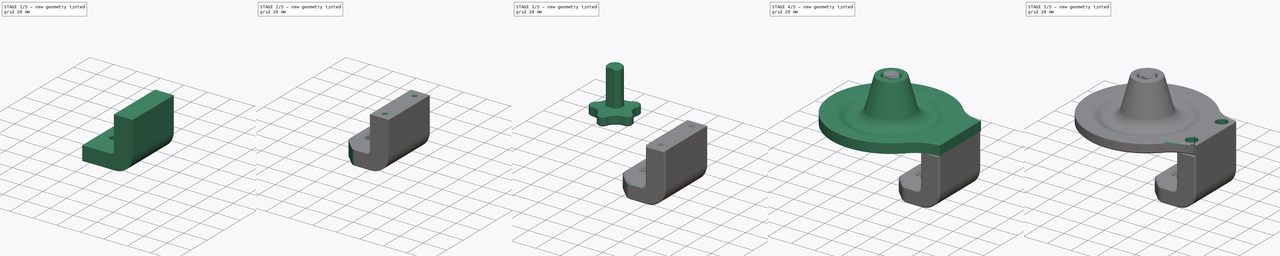
[diagram: build sequence overview — one tinted view per stage of 5, left to right]
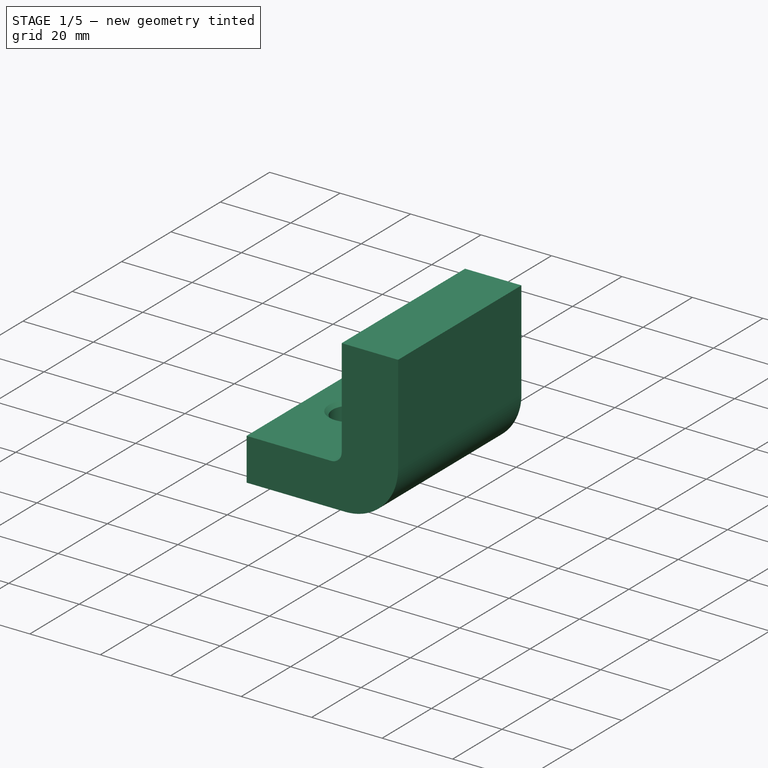
[diagram: stage 1 of 5 — iso view after this stage's code; geometry added in this stage tinted green]
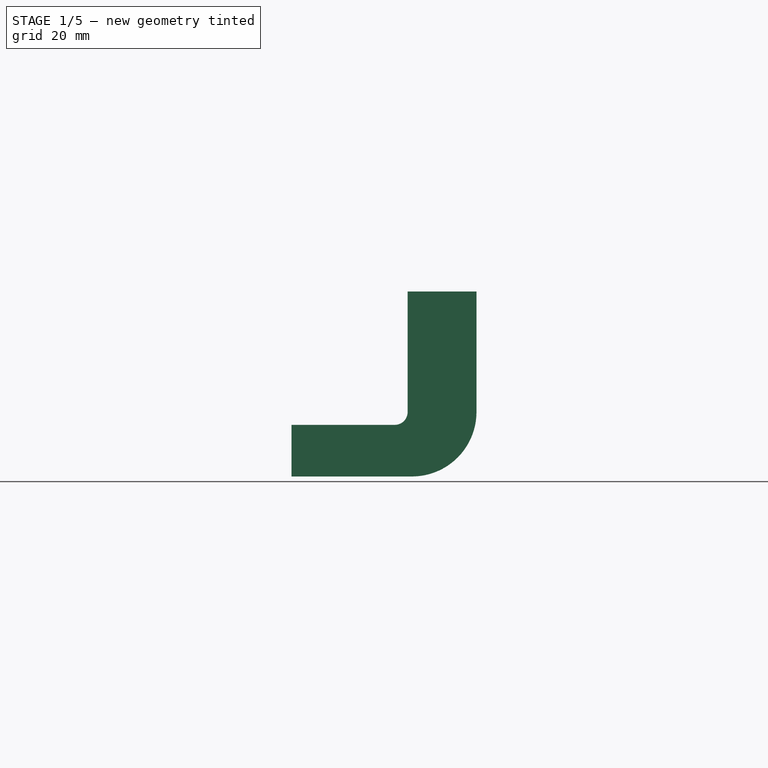
[diagram: stage 1 of 5 — front view after this stage's code; geometry added in this stage tinted green]
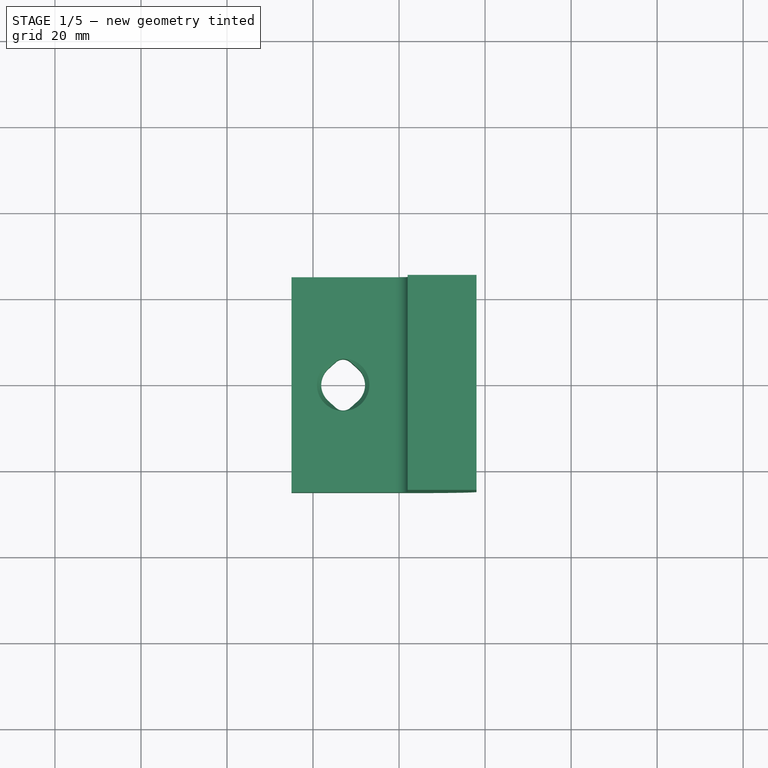
[diagram: stage 1 of 5 — top view after this stage's code; geometry added in this stage tinted green]
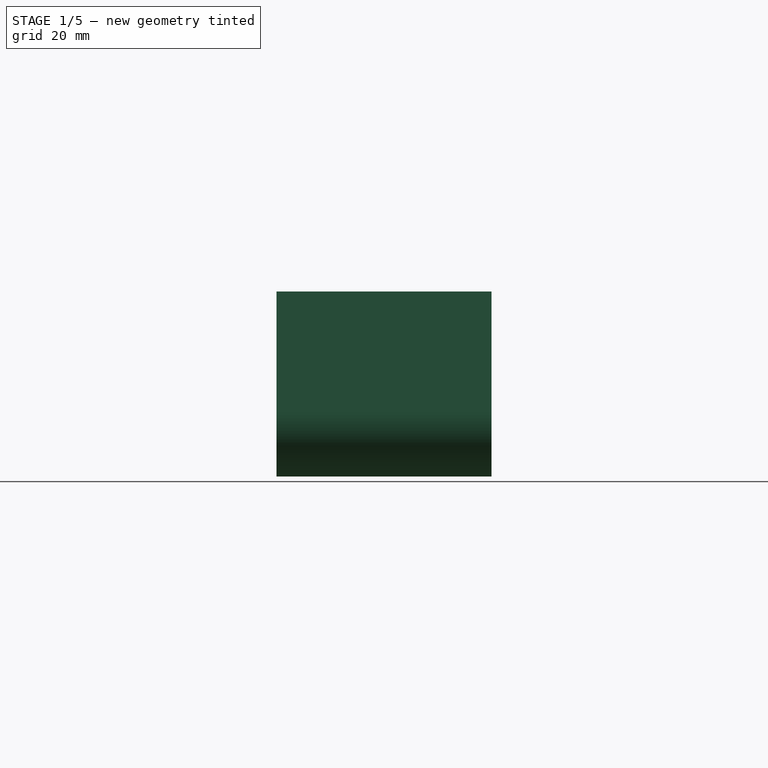
[diagram: stage 1 of 5 — right view after this stage's code; geometry added in this stage tinted green]
FCSTD DOCUMENT  (FreeCAD 0.21R33771 (Git))
Label: _LampFoot
License: Creative Commons Attribution 4.0
objects: Sketcher::SketchObject×12, PartDesign::Chamfer×6, PartDesign::Pocket×5, PartDesign::Hole×3, PartDesign::Body×3, PartDesign::Revolution×2, PartDesign::Pad×2, PartDesign::Fillet×2, PartDesign::SubtractiveHelix×1
note: 57 computed .brp shape members not serialized (recipe doc carries the construction recipe); baked Part::Feature solids carry a one-line shape summary decoded from their .brp

FEATURE [Sketcher::SketchObject] Sketch002
  AttachmentOffset = pos=(0,0,8) rot=(0,0,1;0rad)
  FullyConstrained = true
  MapMode = 5
  Placement = pos=(0,0,8) rot=(0,0,1;0rad)
  Support = -> [XY_Plane]
  expr: .AttachmentOffset.Base.z = Sketch.Constraints[20]
  sketch-geometry (2):
    g0: Circle CenterX=50 CenterY=18 CenterZ=0 NormalX=0 NormalY=0 NormalZ=1 AngleXU=0 Radius=2.2
    g1: Circle CenterX=50 CenterY=-18 CenterZ=0 NormalX=0 NormalY=0 NormalZ=1 AngleXU=0 Radius=2.2
  constraints (5):
    c: Symmetric(g1,g0,g-1)
    c: Equal(g0,g1)
    c: Diameter(g0) = 4.4
    c: DistanceY(g1,g-1) = 18
    c: DistanceX(g-1,g0) = 50
FEATURE [Sketcher::SketchObject] Sketch004
  FullyConstrained = true
  MapMode = 5
  Placement = pos=(0,0,0) rot=(1,0,0;1.5708rad)
  Support = -> [XZ_Plane001]
  sketch-geometry (8):
    g0: LineSegment StartX=42 StartY=0 StartZ=0 EndX=42 EndY=-28 EndZ=0
    g1: LineSegment StartX=39 StartY=-31 StartZ=0 EndX=15 EndY=-31 EndZ=0
    g2: LineSegment StartX=15 StartY=-31 StartZ=0 EndX=15 EndY=-43 EndZ=0
    g3: LineSegment StartX=15 StartY=-43 StartZ=0 EndX=43 EndY=-43 EndZ=0
    g4: LineSegment StartX=58 StartY=-28 StartZ=0 EndX=58 EndY=0 EndZ=0
    g5: LineSegment StartX=58 StartY=0 StartZ=0 EndX=42 EndY=0 EndZ=0
    g6: ArcOfCircle CenterX=43 CenterY=-28 CenterZ=0 NormalX=0 NormalY=0 NormalZ=1 AngleXU=0 Radius=15 StartAngle=4.71239 EndAngle=6.28319
    g7: ArcOfCircle CenterX=39 CenterY=-28 CenterZ=0 NormalX=0 NormalY=0 NormalZ=1 AngleXU=0 Radius=3 StartAngle=4.71239 EndAngle=6.28319
  constraints (22):
    c: Vertical(g0)
    c: Horizontal(g1)
    c: Coincident(g1,g2)
    c: Coincident(g2,g3)
    c: Coincident(g4,g5)
    c: Coincident(g5,g0)
    c: Horizontal(g5)
    c: Horizontal(g3)
    c: Vertical(g2)
    c: Vertical(g4)
    c: DistanceX(g5,g5) = 16
    c: PointOnObject(g4,g-1)
    c: DistanceX(g-1,g4) = 58
    c: DistanceY(g2,g2) = 12
    c: Tangent(g6,g4) = -1.5708
    c: Tangent(g6,g3) = -1.5708
    c: Tangent(g0,g7) = 1.5708
    c: Tangent(g1,g7) = 1.5708
    c: DistanceY(g0,g0) = 28
    c: Radius(g7) = 3
    c: Horizontal(g0,g4)
    c: DistanceX(g1,g1) = 24
FEATURE [PartDesign::Pad] Pad001
  Direction = (0,-1,-2e-16)
  Length = 50
  Length2 = 10
  Midplane = true
  Placement = pos=(0,0,0) rot=(1,0,0;1.5708rad)
  Profile = -> Sketch004
  ReferenceAxis = -> Sketch004 [N_Axis]
  Type = 0
FEATURE [Sketcher::SketchObject] Sketch005
  FullyConstrained = true
  MapMode = 5
  Support = -> [XY_Plane001]
  sketch-geometry (1):
    g0: Circle CenterX=27 CenterY=0 CenterZ=0 NormalX=0 NormalY=0 NormalZ=1 AngleXU=0 Radius=5.1
  constraints (3):
    c: PointOnObject(g0,g-1)
    c: Diameter(g0) = 10.2
    c: DistanceX(g-1,g0) = 27
FEATURE [PartDesign::Pocket] Pocket
  BaseFeature = -> Pad001
  Direction = (0,0,-1)
  Length = 5
  Length2 = 5
  Placement = pos=(0,0,0) rot=(1,0,0;1.5708rad)
  Profile = -> Sketch005
  ReferenceAxis = -> Sketch005 [N_Axis]
  Type = 1
FEATURE [PartDesign::Chamfer] Chamfer005
  Angle = 45
  Base = -> Pocket [Edge5,Edge23]
  BaseFeature = -> Pocket
  ChamferType = 0
  FlipDirection = false
  Placement = pos=(0,0,0) rot=(1,0,0;1.5708rad)
  Size = 1
  Size2 = 1
  SupportTransform = false
  UseAllEdges = false
FEATURE [PartDesign::Body] Body  label="Base"
  Group = -> [Sketch,Revolution,Sketch001,Pad,Sketch002,Hole,Chamfer,Chamfer003,Fillet]
  Origin = -> Origin
  Tip = -> Fillet
FEATURE [Sketcher::SketchObject] Sketch007
  ExternalGeometry = -> [Sketch005]
  FullyConstrained = true
  MapMode = 5
  Support = -> [XY_Plane001]
  sketch-geometry (9):
    g0: LineSegment StartX=25.3264 StartY=5.35714 StartZ=0 EndX=23.5858 EndY=3.78857 EndZ=0
    g1: ArcOfCircle CenterX=27 CenterY=0 CenterZ=0 NormalX=0 NormalY=0 NormalZ=1 AngleXU=0 Radius=5.1 StartAngle=2.30426 EndAngle=3.97892
    g2: LineSegment StartX=23.5858 StartY=-3.78857 StartZ=0 EndX=25.3264 EndY=-5.35714 EndZ=0
    g3: LineSegment StartX=28.6736 StartY=-5.35714 StartZ=0 EndX=30.4142 EndY=-3.78857 EndZ=0
    g4: ArcOfCircle CenterX=27 CenterY=0 CenterZ=0 NormalX=0 NormalY=0 NormalZ=1 AngleXU=0 Radius=5.1 StartAngle=5.44586 EndAngle=7.12051
    g5: LineSegment StartX=30.4142 StartY=3.78857 StartZ=0 EndX=28.6736 EndY=5.35714 EndZ=0
    g6: ArcOfCircle CenterX=27 CenterY=3.5 CenterZ=0 NormalX=0 NormalY=0 NormalZ=1 AngleXU=0 Radius=2.5 StartAngle=0.837328 EndAngle=2.30426
    g7: ArcOfCircle CenterX=27 CenterY=-3.5 CenterZ=0 NormalX=0 NormalY=0 NormalZ=1 AngleXU=0 Radius=2.5 StartAngle=3.97892 EndAngle=5.44586
    g8: Circle CenterX=27 CenterY=0 CenterZ=0 NormalX=0 NormalY=0 NormalZ=1 AngleXU=0 Radius=6
  constraints (19):
    c: Tangent(g0,g1) = -1.5708
    c: Tangent(g1,g2) = -1.5708
    c: Tangent(g3,g4) = -1.5708
    c: Tangent(g4,g5) = -1.5708
    c: Equal(g1,g4)
    c: Coincident(g4,g1)
    c: Radius(g4) = 5.1
    c: Coincident(g1,g-3)
    c: Tangent(g0,g6) = -1.5708
    c: Tangent(g5,g6) = -1.5708
    c: Tangent(g2,g7) = -1.5708
    c: Tangent(g3,g7) = -1.5708
    c: Equal(g7,g6)
    c: Symmetric(g6,g7,g-1)
    c: Coincident(g8,g1)
    c: Tangent(g6,g8)
    c: Diameter(g8) = 12
    c: Vertical(g6,g1)
    c: Radius(g6) = 2.5
FEATURE [PartDesign::Pocket] Pocket001
  BaseFeature = -> Chamfer005
  Direction = (0,0,-1)
  Length = 5
  Length2 = 5
  Placement = pos=(0,0,0) rot=(1,0,0;1.5708rad)
  Profile = -> Sketch007
  ReferenceAxis = -> Sketch007 [N_Axis]
  Type = 1
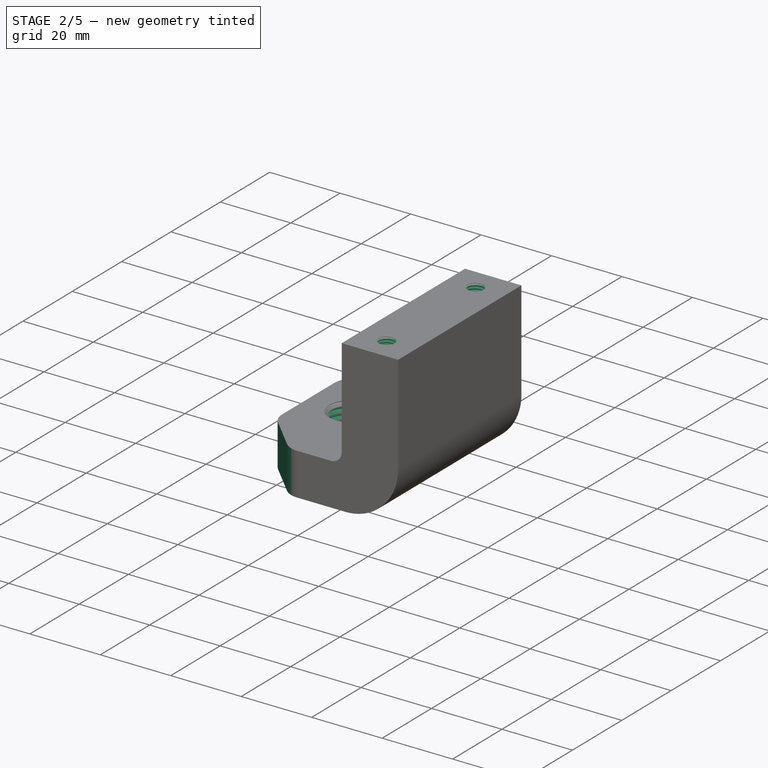
[diagram: stage 2 of 5 — iso view after this stage's code; geometry added in this stage tinted green]
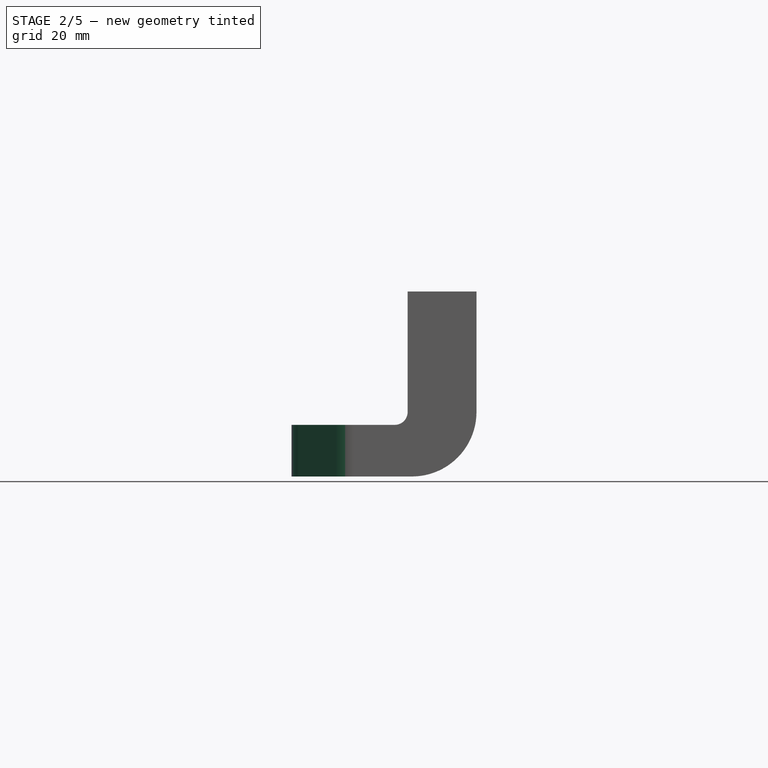
[diagram: stage 2 of 5 — front view after this stage's code; geometry added in this stage tinted green]
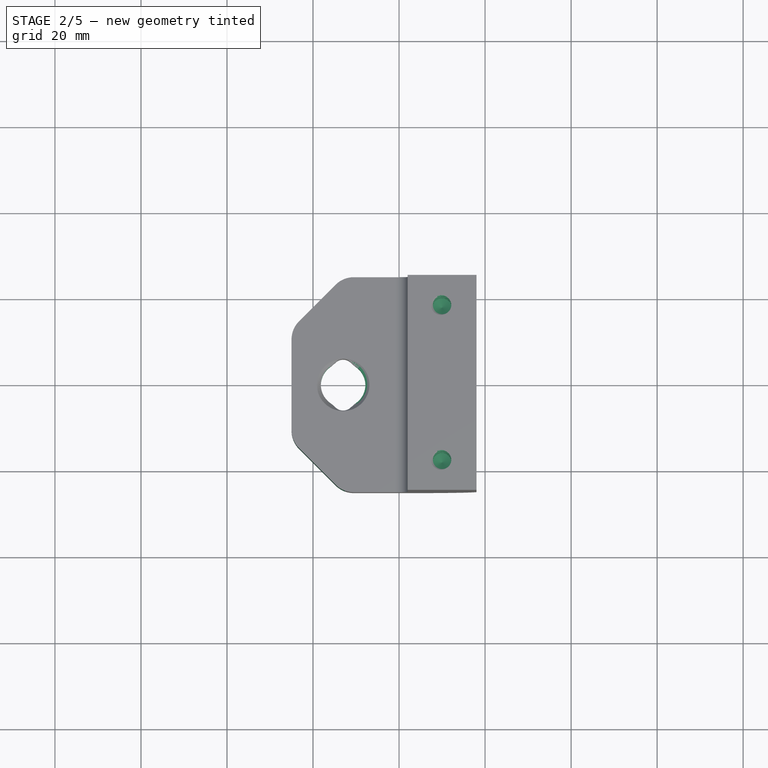
[diagram: stage 2 of 5 — top view after this stage's code; geometry added in this stage tinted green]
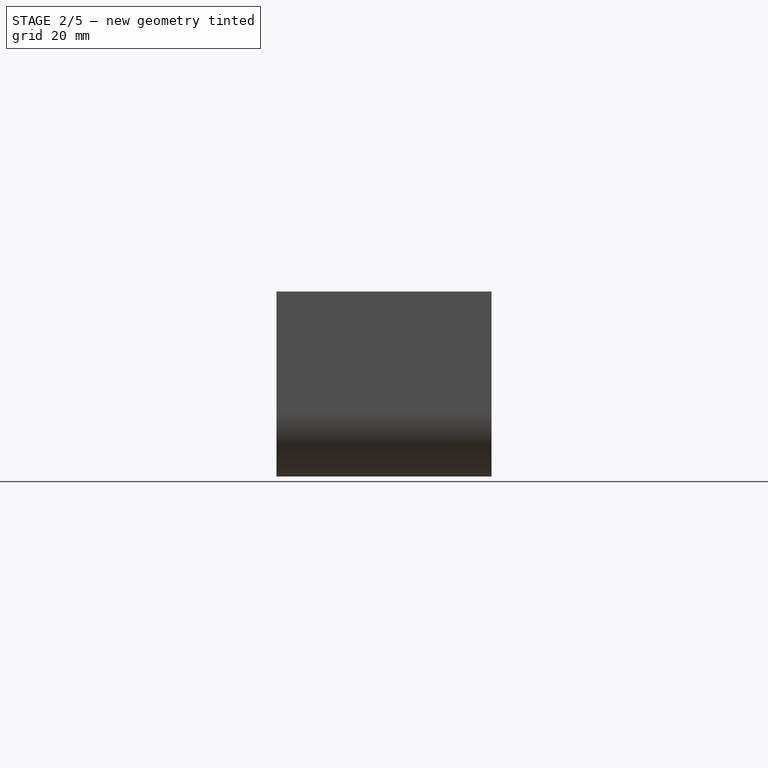
[diagram: stage 2 of 5 — right view after this stage's code; geometry added in this stage tinted green]
FEATURE [PartDesign::Hole] Hole001
  BaseFeature = -> Pocket001
  CustomThreadClearance = 0.15
  Depth = 159.029
  DepthType = 1
  Diameter = 10.35
  DrillForDepth = false
  DrillPoint = 1
  DrillPointAngle = 118
  HoleCutCountersinkAngle = 90
  HoleCutCustomValues = false
  HoleCutDepth = 0
  HoleCutDiameter = 6.1
  HoleCutType = 0
  ModelThread = true
  Placement = pos=(0,0,0) rot=(1,0,0;1.5708rad)
  Profile = -> Pocket001 [Edge1]
  Tapered = false
  TaperedAngle = 90
  ThreadClass = 0
  ThreadDepth = 159.029
  ThreadDepthType = 0
  ThreadDirection = 0
  ThreadFit = 0
  ThreadSize = 20
  ThreadType = 1
  Threaded = true
  UseCustomThreadClearance = true
FEATURE [Sketcher::SketchObject] Sketch006
  FullyConstrained = true
  MapMode = 5
  sketch-geometry (2):
    g0: Circle CenterX=50 CenterY=18 CenterZ=0 NormalX=0 NormalY=0 NormalZ=1 AngleXU=0 Radius=2.1
    g1: Circle CenterX=50 CenterY=-18 CenterZ=0 NormalX=0 NormalY=0 NormalZ=1 AngleXU=0 Radius=2.1
  constraints (5):
    c: Symmetric(g0,g1,g-1)
    c: DistanceX(g-1,g0) = 50
    c: DistanceY(g1,g0) = 36
    c: Equal(g0,g1)
    c: Diameter(g1) = 4.2
FEATURE [PartDesign::Hole] Hole002
  BaseFeature = -> Hole001
  CustomThreadClearance = 0.1
  Depth = 34
  DepthType = 0
  Diameter = 4.3
  DrillForDepth = false
  DrillPoint = 1
  DrillPointAngle = 118
  HoleCutCountersinkAngle = 90
  HoleCutCustomValues = false
  HoleCutDepth = 0
  HoleCutDiameter = 6.1
  HoleCutType = 0
  ModelThread = true
  Placement = pos=(0,0,0) rot=(1,0,0;1.5708rad)
  Profile = -> Sketch006
  Tapered = false
  TaperedAngle = 90
  ThreadClass = 0
  ThreadDepth = 34
  ThreadDepthType = 0
  ThreadDirection = 0
  ThreadFit = 0
  ThreadSize = 13
  ThreadType = 1
  Threaded = true
  UseCustomThreadClearance = true
FEATURE [PartDesign::Body] Body002  label="Srcrew"
  Group = -> [Sketch008,Revolution001,Sketch009,Pocket002,Sketch010,Pocket003,Chamfer006,Sketch011,Sketch012,SubtractiveHelix,Pocket004]
  Origin = -> Origin002
  Placement = pos=(27,0,-64) rot=(0,0,1;0rad)
  Tip = -> Pocket004
FEATURE [PartDesign::Chamfer] Chamfer007
  Angle = 45
  Base = -> Hole002 [Edge28,Edge22]
  BaseFeature = -> Hole002
  ChamferType = 0
  FlipDirection = false
  Placement = pos=(0,0,0) rot=(1,0,0;1.5708rad)
  Size = 12
  Size2 = 1
  SupportTransform = false
  UseAllEdges = false
FEATURE [PartDesign::Fillet] Fillet001
  Base = -> Chamfer007 [Edge21,Edge19,Edge15,Edge8]
  BaseFeature = -> Chamfer007
  Placement = pos=(0,0,0) rot=(1,0,0;1.5708rad)
  Radius = 6
  SupportTransform = false
  UseAllEdges = false
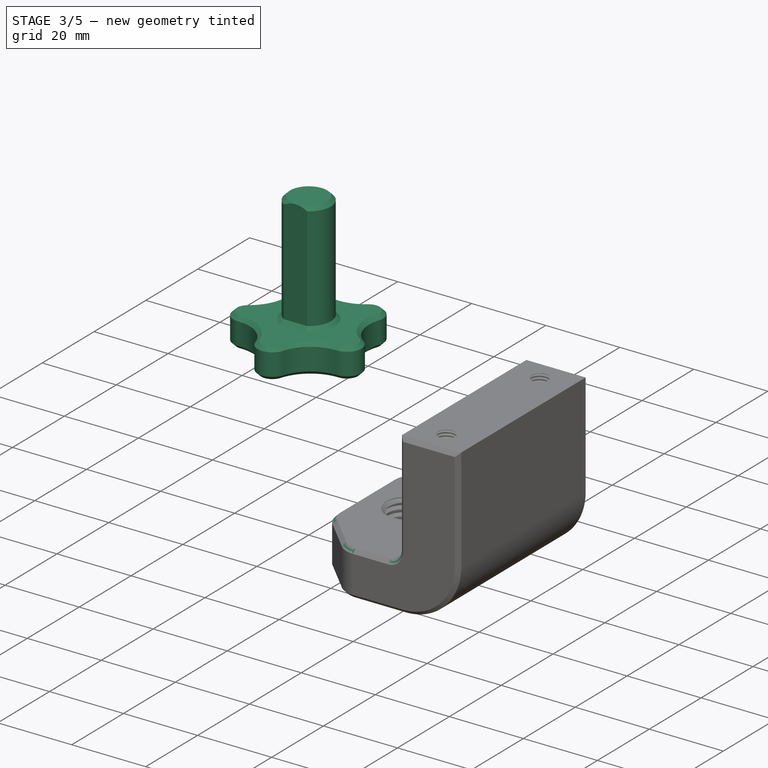
[diagram: stage 3 of 5 — iso view after this stage's code; geometry added in this stage tinted green]
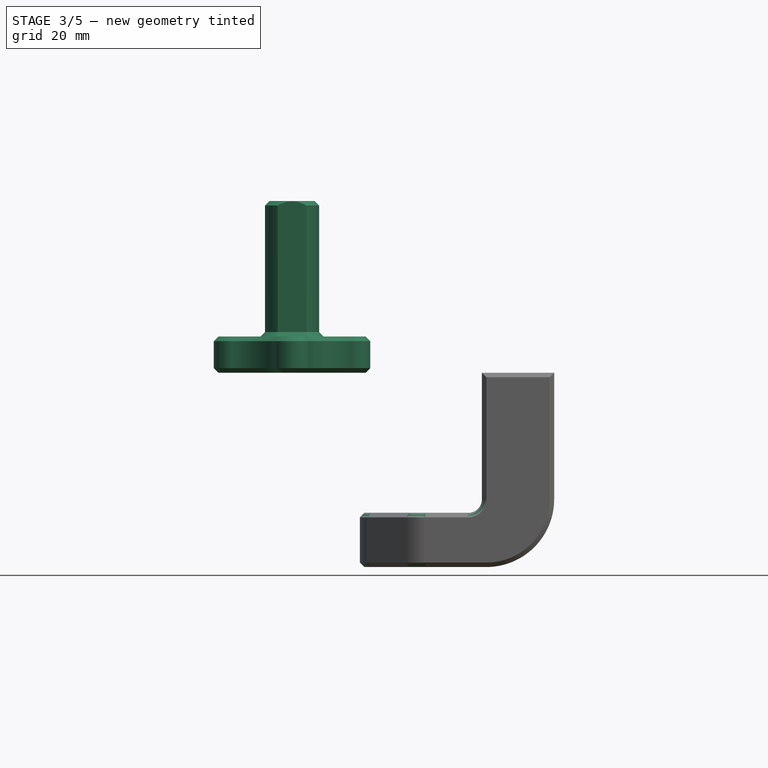
[diagram: stage 3 of 5 — front view after this stage's code; geometry added in this stage tinted green]
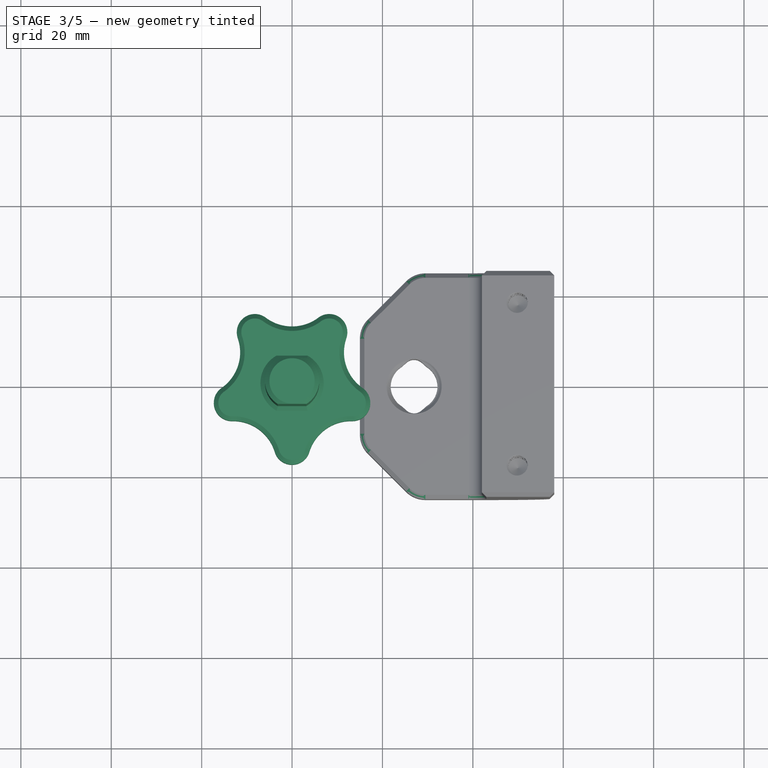
[diagram: stage 3 of 5 — top view after this stage's code; geometry added in this stage tinted green]
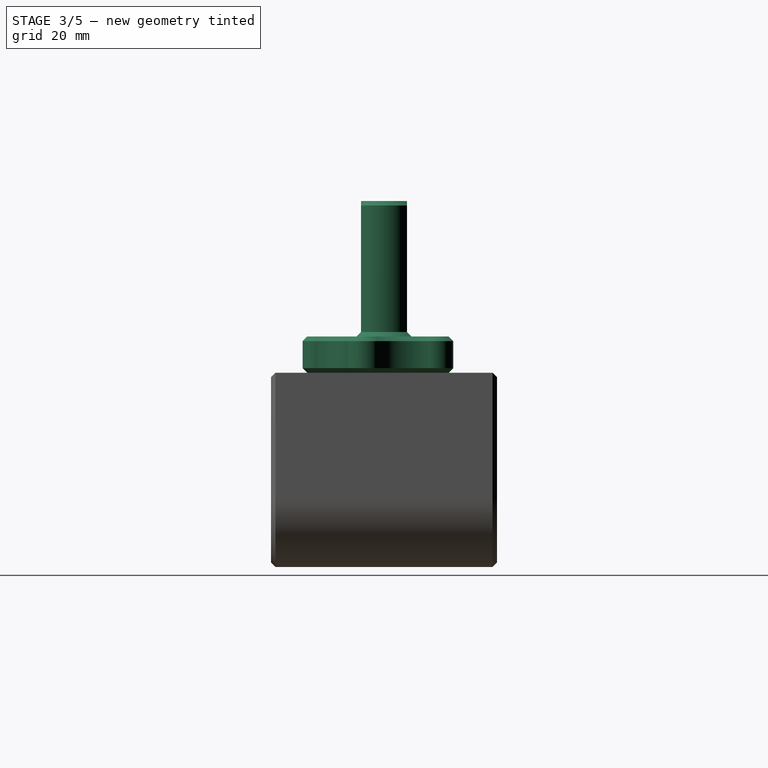
[diagram: stage 3 of 5 — right view after this stage's code; geometry added in this stage tinted green]
FEATURE [Sketcher::SketchObject] Sketch008
  FullyConstrained = true
  MapMode = 5
  Placement = pos=(0,0,0) rot=(1,0,0;1.5708rad)
  Support = -> [XZ_Plane002]
  sketch-geometry (7):
    g0: LineSegment StartX=0 StartY=0 StartZ=0 EndX=18 EndY=0 EndZ=0
    g1: LineSegment StartX=18 StartY=0 StartZ=0 EndX=18 EndY=8 EndZ=0
    g2: LineSegment StartX=18 StartY=8 StartZ=0 EndX=6 EndY=8 EndZ=0
    g3: LineSegment StartX=6 StartY=8 StartZ=0 EndX=6 EndY=37 EndZ=0
    g4: LineSegment StartX=6 StartY=37 StartZ=0 EndX=5 EndY=38 EndZ=0
    g5: LineSegment StartX=5 StartY=38 StartZ=0 EndX=0 EndY=38 EndZ=0
    g6: LineSegment StartX=0 StartY=38 StartZ=0 EndX=0 EndY=0 EndZ=0
  constraints (20):
    c: Coincident(g-1,g0)
    c: PointOnObject(g0,g-1)
    c: Coincident(g0,g1)
    c: Vertical(g1)
    c: Coincident(g1,g2)
    c: Horizontal(g2)
    c: Vertical(g3)
    c: Coincident(g3,g4)
    c: Coincident(g4,g5)
    c: Horizontal(g5)
    c: Coincident(g5,g6)
    c: Coincident(g6,g0)
    c: Vertical(g6)
    c: DistanceY(g3,g4) = 1
    c: DistanceY(g1,g4) = 30
    c: DistanceY(g1,g1) = 8
    c: DistanceX(g5,g3) = 6
    c: DistanceX(g0,g0) = 18
    c: Coincident(g3,g2)
    c: Angle(g4,g3) = 2.35619
FEATURE [PartDesign::Revolution] Revolution001
  Angle = 360
  Axis = (0,2e-16,1)
  Base = (0,0,0)
  Placement = pos=(0,0,0) rot=(1,0,0;1.5708rad)
  Profile = -> Sketch008
  ReferenceAxis = -> Sketch008 [V_Axis]
  Reversed = true
FEATURE [Sketcher::SketchObject] Sketch009
  FullyConstrained = true
  MapMode = 5
  Placement = pos=(0,1.8e-15,8) rot=(0,0,1;3.14159rad)
  Support = -> [Revolution001]
  sketch-geometry (5):
    g0: ArcOfCircle CenterX=0 CenterY=0 CenterZ=0 NormalX=0 NormalY=0 NormalZ=1 AngleXU=0 Radius=6 StartAngle=2.12561 EndAngle=4.15758
    g1: LineSegment StartX=-3.1607 StartY=5.1 StartZ=0 EndX=3.1607 EndY=5.1 EndZ=0
    g2: LineSegment StartX=-3.1607 StartY=-5.1 StartZ=0 EndX=3.1607 EndY=-5.1 EndZ=0
    g3: ArcOfCircle CenterX=0 CenterY=0 CenterZ=0 NormalX=0 NormalY=0 NormalZ=1 AngleXU=0 Radius=6 StartAngle=5.2672 EndAngle=7.29917
    g4: Circle CenterX=0 CenterY=0 CenterZ=0 NormalX=0 NormalY=0 NormalZ=1 AngleXU=0 Radius=19
  constraints (14):
    c: Horizontal(g1)
    c: Horizontal(g2)
    c: Symmetric(g2,g1,g0)
    c: Coincident(g0,g-1)
    c: Diameter(g0) = 12
    c: DistanceY(g2,g1) = 10.2
    c: Coincident(g3,g1)
    c: Coincident(g0,g1)
    c: Equal(g0,g3)
    c: PointOnObject(g0,g2)
    c: Coincident(g3,g2)
    c: Coincident(g0,g3)
    c: Coincident(g4,g0)
    c: Diameter(g4) = 38
FEATURE [PartDesign::Pocket] Pocket002
  BaseFeature = -> Revolution001
  Direction = (0,-2e-16,-1)
  Length = 5
  Length2 = 5
  Placement = pos=(0,0,0) rot=(1,0,0;1.5708rad)
  Profile = -> Sketch009
  ReferenceAxis = -> Sketch009 [N_Axis]
  Refine = true
  Reversed = true
  Type = 1
FEATURE [Sketcher::SketchObject] Sketch010
  FullyConstrained = true
  MapMode = 5
  Support = -> [XY_Plane002]
  sketch-geometry (17):
    g0: LineSegment StartX=0 StartY=22.2492 StartZ=0 EndX=-21.1603 EndY=6.87539 EndZ=0
    g1: LineSegment StartX=-21.1603 StartY=6.87539 StartZ=0 EndX=-13.0778 EndY=-18 EndZ=0
    g2: LineSegment StartX=-13.0778 StartY=-18 StartZ=0 EndX=13.0778 EndY=-18 EndZ=0
    g3: LineSegment StartX=13.0778 StartY=-18 StartZ=0 EndX=21.1603 EndY=6.87539 EndZ=0
    g4: LineSegment StartX=21.1603 StartY=6.87539 StartZ=0 EndX=0 EndY=22.2492 EndZ=0
    g5: Circle CenterX=0 CenterY=0 CenterZ=0 NormalX=0 NormalY=0 NormalZ=1 AngleXU=0 Radius=22.2492
    g6: ArcOfCircle CenterX=0 CenterY=22.2492 CenterZ=0 NormalX=0 NormalY=0 NormalZ=1 AngleXU=0 Radius=9.67582 StartAngle=4.06674 EndAngle=5.35804
    g7: ArcOfCircle CenterX=21.1603 CenterY=6.87539 CenterZ=0 NormalX=0 NormalY=0 NormalZ=1 AngleXU=0 Radius=9.67582 StartAngle=2.8101 EndAngle=4.1014
    g8: ArcOfCircle CenterX=13.0778 CenterY=-18 CenterZ=0 NormalX=0 NormalY=0 NormalZ=1 AngleXU=0 Radius=9.67582 StartAngle=1.55346 EndAngle=2.84477
    g9: ArcOfCircle CenterX=-13.0778 CenterY=-18 CenterZ=0 NormalX=0 NormalY=0 NormalZ=1 AngleXU=0 Radius=9.67582 StartAngle=0.296827 EndAngle=1.58813
    g10: ArcOfCircle CenterX=-21.1603 CenterY=6.87539 CenterZ=0 NormalX=0 NormalY=0 NormalZ=1 AngleXU=0 Radius=9.67582 StartAngle=5.32337 EndAngle=6.61468
    g11: ArcOfCircle CenterX=-8.22899 CenterY=11.3262 CenterZ=0 NormalX=0 NormalY=0 NormalZ=1 AngleXU=0 Radius=4 StartAngle=0.925145 EndAngle=3.47308
    g12: ArcOfCircle CenterX=8.22899 CenterY=11.3262 CenterZ=0 NormalX=0 NormalY=0 NormalZ=1 AngleXU=0 Radius=4 StartAngle=5.95169 EndAngle=8.49963
    g13: ArcOfCircle CenterX=13.3148 CenterY=-4.32624 CenterZ=0 NormalX=0 NormalY=0 NormalZ=1 AngleXU=0 Radius=4 StartAngle=4.69506 EndAngle=7.243
    g14: ArcOfCircle CenterX=-2.6e-15 CenterY=-14 CenterZ=0 NormalX=0 NormalY=0 NormalZ=1 AngleXU=0 Radius=4 StartAngle=3.43842 EndAngle=5.98636
    g15: ArcOfCircle CenterX=-13.3148 CenterY=-4.32624 CenterZ=0 NormalX=0 NormalY=0 NormalZ=1 AngleXU=0 Radius=4 StartAngle=2.18178 EndAngle=4.72972
    g16: Circle CenterX=0 CenterY=0 CenterZ=0 NormalX=0 NormalY=0 NormalZ=1 AngleXU=0 Radius=18
  constraints (44):
    c: Coincident(g0,g1)
    c: Coincident(g1,g2)
    c: Coincident(g2,g3)
    c: Coincident(g3,g4)
    c: Coincident(g4,g0)
    c: PointOnObject(g0,g5)
    c: PointOnObject(g1,g5)
    c: PointOnObject(g2,g5)
    c: PointOnObject(g3,g5)
    c: PointOnObject(g4,g5)
    c: Coincident(g5,g-1)
    c: PointOnObject(g4,g-2)
    c: Coincident(g6,g0)
    c: Coincident(g7,g3)
    c: Coincident(g8,g2)
    c: Coincident(g9,g1)
    c: Coincident(g10,g0)
    c: Tangent(g13,g7) = 1.5708
    c: Tangent(g13,g8) = 1.5708
    c: Tangent(g14,g8) = 1.5708
    c: Tangent(g14,g9) = 1.5708
    c: Tangent(g15,g9) = 1.5708
    c: Tangent(g15,g10) = 1.5708
    c: Tangent(g11,g10) = 1.5708
    c: Tangent(g11,g6) = 1.5708
    c: Tangent(g12,g6) = 1.5708
    c: Tangent(g12,g7) = 1.5708
    c: Equal(g13,g12)
    c: Equal(g12,g11)
    c: Equal(g11,g15)
    c: Equal(g15,g14)
    c: Equal(g8,g7)
    c: Equal(g7,g6)
    c: Equal(g6,g10)
    c: Equal(g10,g9)
    c: Tangent(g14,g2)
    c: Equal(g0,g4)
    c: Equal(g4,g3)
    c: Equal(g3,g2)
    c: Equal(g2,g1)
    c: Coincident(g16,g5)
    c: Tangent(g3,g16)
    c: Diameter(g16) = 36
    c: Radius(g13) = 4
FEATURE [PartDesign::Pocket] Pocket003
  BaseFeature = -> Pocket002
  Direction = (0,0,-1)
  Length = 5
  Length2 = 5
  Placement = pos=(0,0,0) rot=(1,0,0;1.5708rad)
  Profile = -> Sketch010
  ReferenceAxis = -> Sketch010 [N_Axis]
  Reversed = true
  Type = 1
FEATURE [PartDesign::Chamfer] Chamfer006
  Angle = 45
  Base = -> Pocket003 [Edge21,Edge3,Edge50,Edge49,Edge47,Edge46]
  BaseFeature = -> Pocket003
  ChamferType = 0
  FlipDirection = false
  Placement = pos=(0,0,0) rot=(1,0,0;1.5708rad)
  Size = 1
  Size2 = 1
  SupportTransform = false
  UseAllEdges = false
FEATURE [PartDesign::Chamfer] Chamfer008
  Angle = 45
  Base = -> Fillet001 [Edge27,Edge29,Edge17,Edge30]
  BaseFeature = -> Fillet001
  ChamferType = 0
  FlipDirection = false
  Placement = pos=(0,0,0) rot=(1,0,0;1.5708rad)
  Size = 1
  Size2 = 1
  SupportTransform = false
  UseAllEdges = false
FEATURE [PartDesign::Body] Body001  label="Anchor"
  Group = -> [Sketch004,Pad001,Sketch005,Pocket,Chamfer005,Sketch007,Pocket001,Hole001,Sketch006,Hole002,Chamfer007,Fillet001,Chamfer008]
  Origin = -> Origin001
  Tip = -> Chamfer008
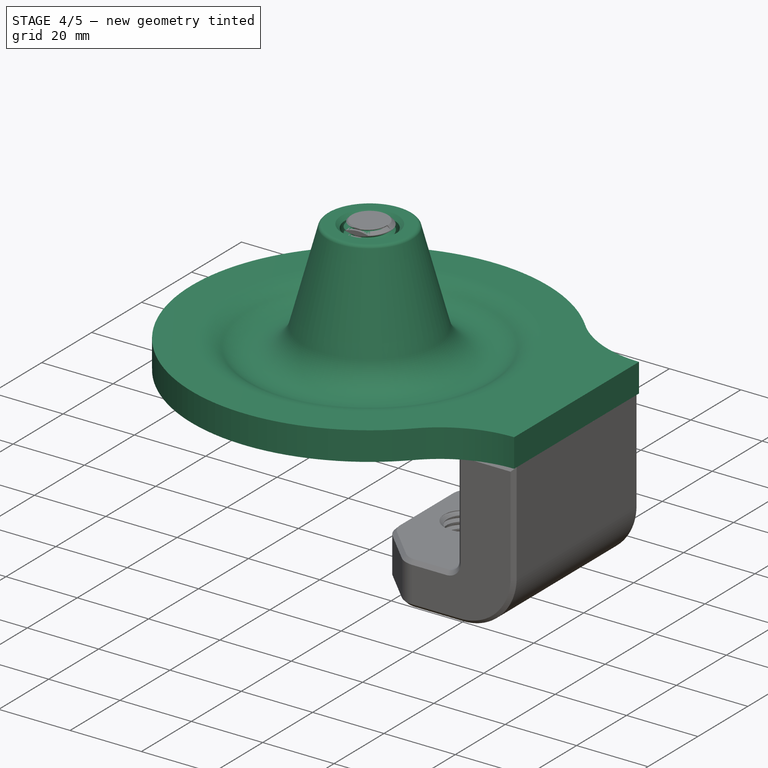
[diagram: stage 4 of 5 — iso view after this stage's code; geometry added in this stage tinted green]
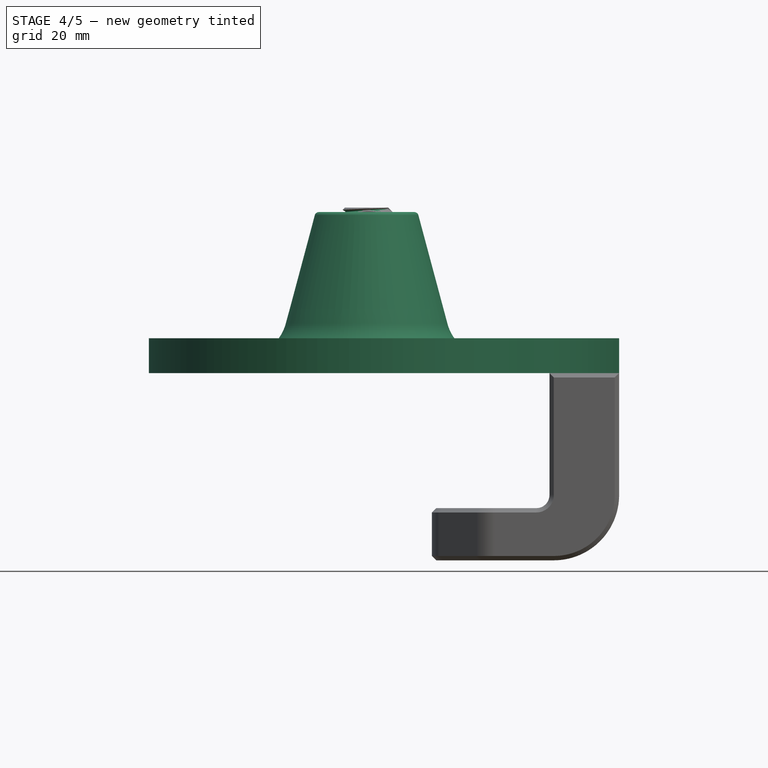
[diagram: stage 4 of 5 — front view after this stage's code; geometry added in this stage tinted green]
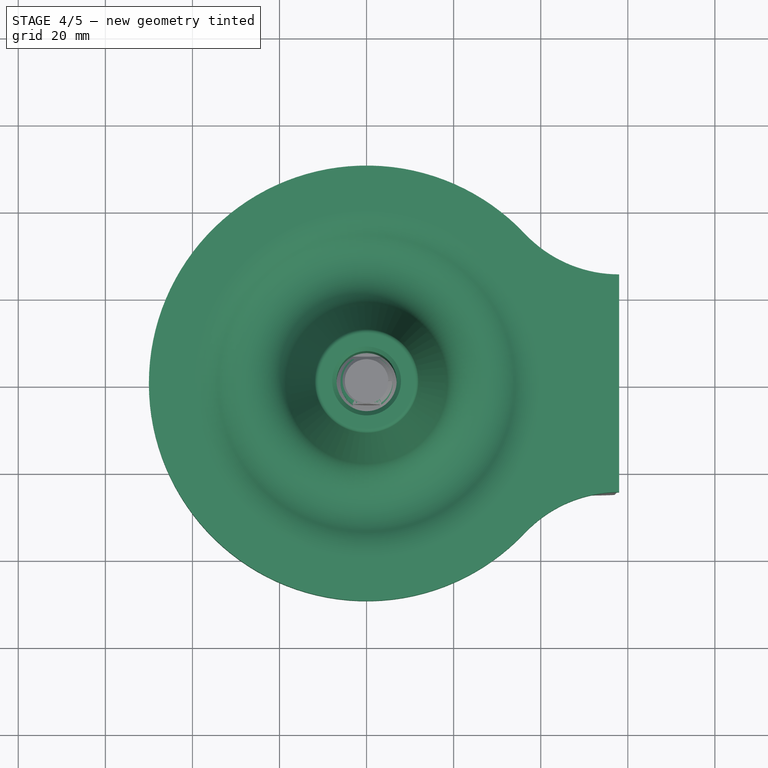
[diagram: stage 4 of 5 — top view after this stage's code; geometry added in this stage tinted green]
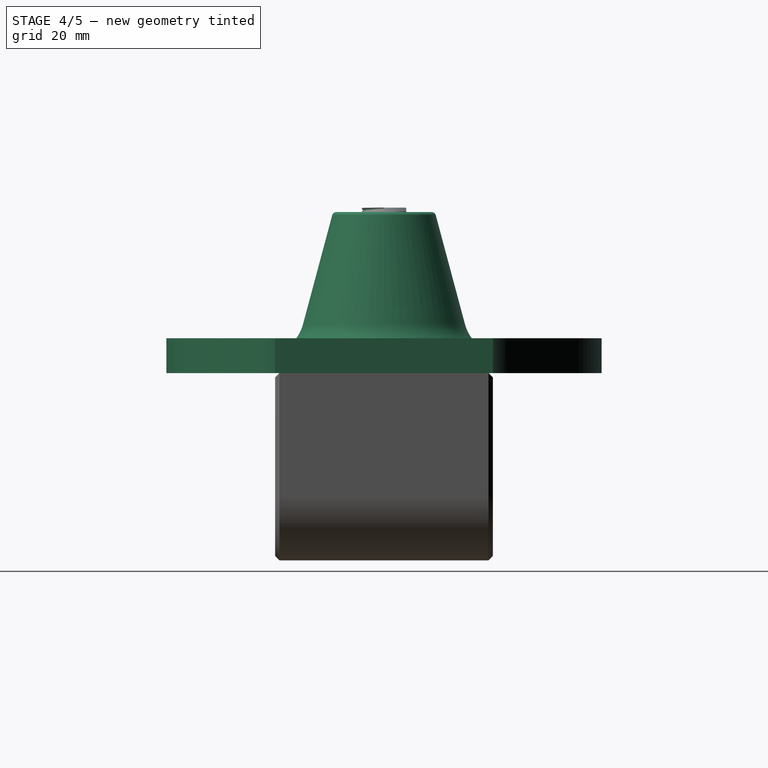
[diagram: stage 4 of 5 — right view after this stage's code; geometry added in this stage tinted green]
FEATURE [Sketcher::SketchObject] Sketch
  FullyConstrained = true
  MapMode = 5
  Placement = pos=(0,0,0) rot=(1,0,0;1.5708rad)
  Support = -> [XZ_Plane]
  sketch-geometry (11):
    g0: LineSegment StartX=6.9 StartY=0 StartZ=0 EndX=6.9 EndY=36 EndZ=0
    g1: LineSegment StartX=6.9 StartY=36 StartZ=0 EndX=7.9 EndY=37 EndZ=0
    g2: LineSegment StartX=7.9 StartY=37 StartZ=0 EndX=10.9341 EndY=37 EndZ=0
    g3: LineSegment StartX=11.9 StartY=36.2588 StartZ=0 EndX=18.5877 EndY=11.2999 EndZ=0
    g4: ArcOfCircle CenterX=28.1011 CenterY=13.849 CenterZ=0 NormalX=0 NormalY=0 NormalZ=1 AngleXU=0 Radius=9.84898 StartAngle=3.40339 EndAngle=5.36098
    g5: ArcOfCircle CenterX=40 CenterY=-1.84898 CenterZ=0 NormalX=0 NormalY=0 NormalZ=1 AngleXU=0 Radius=9.84898 StartAngle=1.5708 EndAngle=2.21939
    g6: LineSegment StartX=40 StartY=8 StartZ=0 EndX=50 EndY=8 EndZ=0
    g7: LineSegment StartX=50 StartY=8 StartZ=0 EndX=50 EndY=0 EndZ=0
    g8: LineSegment StartX=50 StartY=0 StartZ=0 EndX=6.9 EndY=0 EndZ=0
    g9: ArcOfCircle CenterX=10.9341 CenterY=36 CenterZ=0 NormalX=0 NormalY=0 NormalZ=1 AngleXU=0 Radius=1 StartAngle=0.261799 EndAngle=1.5708
    g10: GeomPoint X=28.1011 Y=4 Z=0
  constraints (30):
    c: PointOnObject(g0,g-1)
    c: Vertical(g0)
    c: Coincident(g0,g1)
    c: Coincident(g1,g2)
    c: Horizontal(g2)
    c: Tangent(g3,g4) = -1.5708
    c: Tangent(g4,g5) = 1.5708
    c: Tangent(g5,g6) = 1.5708
    c: Coincident(g8,g0)
    c: Horizontal(g8)
    c: DistanceY(g0,g1) = 37
    c: Vertical(g7)
    c: Horizontal(g6)
    c: DistanceX(g-1,g7) = 50
    c: DistanceX(g-1,g0) = 6.9
    c: Tangent(g2,g9) = 1.5708
    c: Tangent(g3,g9) = 1.5708
    c: Radius(g9) = 1
    c: DistanceX(g0,g3) = 5
    c: Coincident(g7,g6)
    c: DistanceY(g7,g7) = 8
    c: Angle(g0,g3) = 0.261799
    c: DistanceX(g6,g6) = 10
    c: Equal(g5,g4)
    c: PointOnObject(g10,g4)
    c: Vertical(g4,g10)
    c: DistanceY(g10,g6) = 4
    c: Angle(g0,g1) = 2.35619
    c: DistanceY(g0,g1) = 1
    c: Coincident(g7,g8)
FEATURE [PartDesign::Revolution] Revolution
  Angle = 360
  Axis = (0,-2e-16,1)
  Base = (0,0,0)
  Placement = pos=(0,0,0) rot=(1,0,0;1.5708rad)
  Profile = -> Sketch
  ReferenceAxis = -> Sketch [V_Axis]
  Reversed = true
FEATURE [Sketcher::SketchObject] Sketch001
  FullyConstrained = true
  MapMode = 5
  Support = -> [XY_Plane]
  sketch-geometry (4):
    g0: ArcOfCircle CenterX=0 CenterY=0 CenterZ=0 NormalX=0 NormalY=0 NormalZ=1 AngleXU=0 Radius=50 StartAngle=5.52633 EndAngle=7.04004
    g1: ArcOfCircle CenterX=58 CenterY=-54.78 CenterZ=0 NormalX=0 NormalY=0 NormalZ=1 AngleXU=0 Radius=29.78 StartAngle=1.5708 EndAngle=2.38474
    g2: ArcOfCircle CenterX=58 CenterY=54.78 CenterZ=0 NormalX=0 NormalY=0 NormalZ=1 AngleXU=0 Radius=29.78 StartAngle=3.89845 EndAngle=4.71239
    g3: LineSegment StartX=58 StartY=25 StartZ=0 EndX=58 EndY=-25 EndZ=0
  constraints (12):
    c: Coincident(g0,g-1)
    c: Radius(g0) = 50
    c: Equal(g2,g1)
    c: Vertical(g1,g1)
    c: Vertical(g2,g2)
    c: DistanceY(g1,g2) = 50
    c: Vertical(g1,g2)
    c: Tangent(g1,g0) = 1.5708
    c: Tangent(g2,g0) = 1.5708
    c: DistanceX(g0,g1) = 58
    c: Coincident(g3,g2)
    c: Coincident(g3,g1)
FEATURE [PartDesign::Pad] Pad
  BaseFeature = -> Revolution
  Direction = (0,0,1)
  Length = 8
  Length2 = 10
  Placement = pos=(0,0,0) rot=(1,0,0;1.5708rad)
  Profile = -> Sketch001
  ReferenceAxis = -> Sketch001 [N_Axis]
  Refine = true
  Type = 0
FEATURE [Sketcher::SketchObject] Sketch011
  FullyConstrained = true
  MapMode = 5
  Placement = pos=(0,0,0) rot=(1,0,0;1.5708rad)
  Support = -> [XZ_Plane002]
  sketch-geometry (6):
    g0: LineSegment StartX=6.15 StartY=10.74 StartZ=0 EndX=4.64312 EndY=9.87 EndZ=0
    g1: LineSegment StartX=4.64312 StartY=9.87 StartZ=0 EndX=6.15 EndY=9 EndZ=0
    g2: LineSegment StartX=6.15 StartY=9 StartZ=0 EndX=6.15 EndY=10.74 EndZ=0
    g3: LineSegment StartX=6.15 StartY=9 StartZ=0 EndX=4.94312 EndY=9.69679 EndZ=0
    g4: ArcOfCircle CenterX=5.04312 CenterY=9.87 CenterZ=0 NormalX=0 NormalY=0 NormalZ=1 AngleXU=0 Radius=0.2 StartAngle=2.0944 EndAngle=4.18879
    g5: LineSegment StartX=4.94312 StartY=10.0432 StartZ=0 EndX=6.15 EndY=10.74 EndZ=0
  constraints (16):
    c: Coincident(g0,g1)
    c: Coincident(g1,g2)
    c: Coincident(g2,g0)
    c: Vertical(g2)
    c: Equal(g1,g2)
    c: Equal(g2,g0)
    c: Coincident(g2,g3)
    c: Tangent(g3,g4) = 1.5708
    c: Tangent(g4,g5) = 1.5708
    c: Coincident(g5,g2)
    c: PointOnObject(g4,g0)
    c: PointOnObject(g3,g1)
    c: Radius(g4) = 0.2
    c: DistanceY(g2,g2) = 1.74
    c: DistanceX(g-1,g2) = 6.15
    c: DistanceY(g-1,g2) = 9
FEATURE [Sketcher::SketchObject] Sketch012
  FullyConstrained = true
  MapMode = 5
  Placement = pos=(0,0,0) rot=(1,0,0;1.5708rad)
  Support = -> [XZ_Plane002]
  sketch-geometry (6):
    g0: LineSegment StartX=6.15 StartY=10.74 StartZ=0 EndX=4.64312 EndY=9.87 EndZ=0
    g1: LineSegment StartX=4.64312 StartY=9.87 StartZ=0 EndX=6.15 EndY=9 EndZ=0
    g2: LineSegment StartX=6.15 StartY=9 StartZ=0 EndX=6.15 EndY=10.74 EndZ=0
    g3: LineSegment StartX=6.15 StartY=9 StartZ=0 EndX=4.94312 EndY=9.69679 EndZ=0
    g4: ArcOfCircle CenterX=5.04312 CenterY=9.87 CenterZ=0 NormalX=0 NormalY=0 NormalZ=1 AngleXU=0 Radius=0.2 StartAngle=2.0944 EndAngle=4.18879
    g5: LineSegment StartX=4.94312 StartY=10.0432 StartZ=0 EndX=6.15 EndY=10.74 EndZ=0
  constraints (16):
    c: Coincident(g0,g1)
    c: Coincident(g1,g2)
    c: Coincident(g2,g0)
    c: Vertical(g2)
    c: Equal(g1,g2)
    c: Equal(g2,g0)
    c: Coincident(g2,g3)
    c: Tangent(g3,g4) = 1.5708
    c: Tangent(g4,g5) = 1.5708
    c: Coincident(g5,g2)
    c: PointOnObject(g4,g0)
    c: PointOnObject(g3,g1)
    c: Radius(g4) = 0.2
    c: DistanceY(g2,g2) = 1.74
    c: DistanceX(g-1,g2) = 6.15
    c: DistanceY(g-1,g2) = 9
FEATURE [PartDesign::SubtractiveHelix] SubtractiveHelix
  Angle = 0
  Axis = (0,2e-16,1)
  Base = (0,0,0)
  BaseFeature = -> Chamfer006
  Growth = 0
  HasBeenEdited = true
  Height = 28
  LeftHanded = false
  Mode = 0
  Outside = false
  Pitch = 1.75
  Placement = pos=(0,0,0) rot=(1,0,0;1.5708rad)
  Profile = -> Sketch011
  ReferenceAxis = -> Sketch011 [V_Axis]
  Turns = 16
FEATURE [PartDesign::Pocket] Pocket004
  BaseFeature = -> SubtractiveHelix
  Direction = (0,1,-2e-16)
  Length = 5
  Length2 = 5
  Placement = pos=(0,0,0) rot=(1,0,0;1.5708rad)
  Profile = -> Sketch012
  ReferenceAxis = -> Sketch012 [N_Axis]
  Reversed = true
  Type = 1
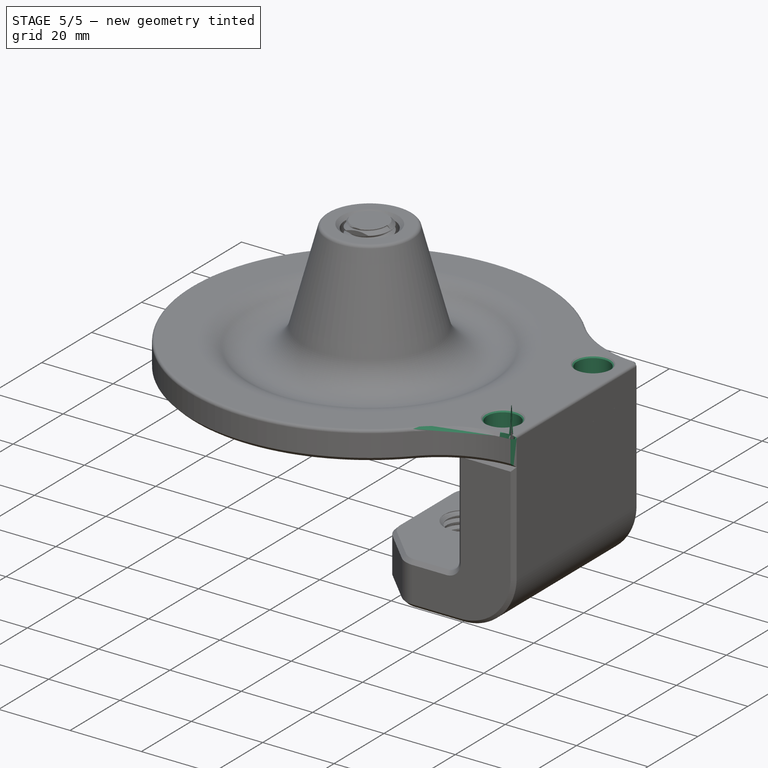
[diagram: stage 5 of 5 — iso view after this stage's code; geometry added in this stage tinted green]
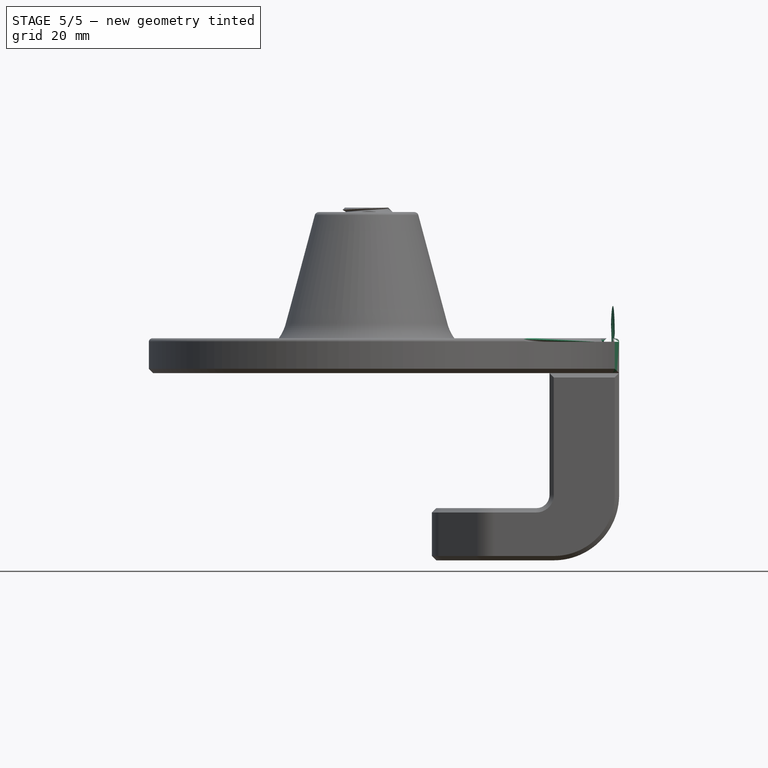
[diagram: stage 5 of 5 — front view after this stage's code; geometry added in this stage tinted green]
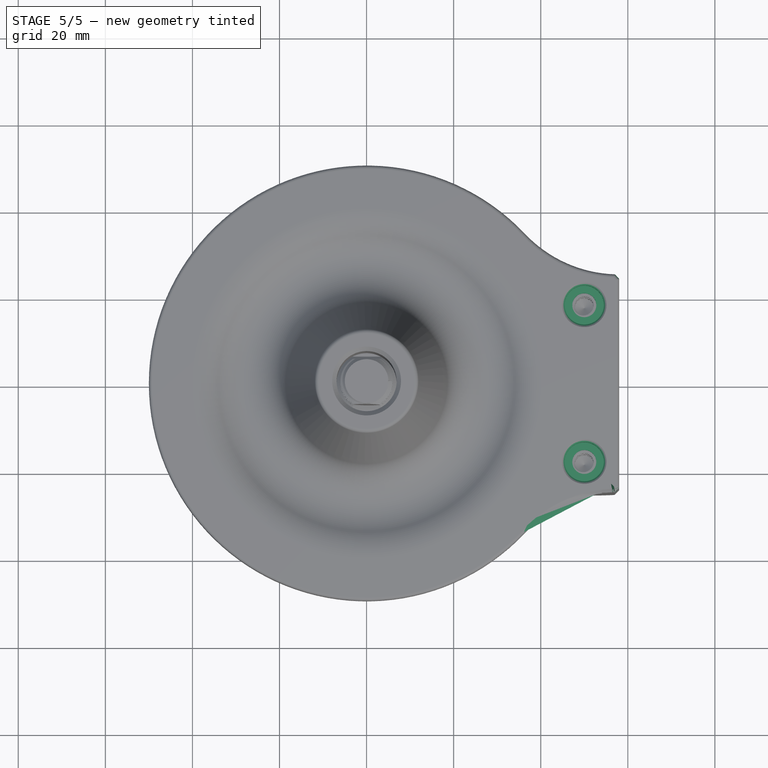
[diagram: stage 5 of 5 — top view after this stage's code; geometry added in this stage tinted green]
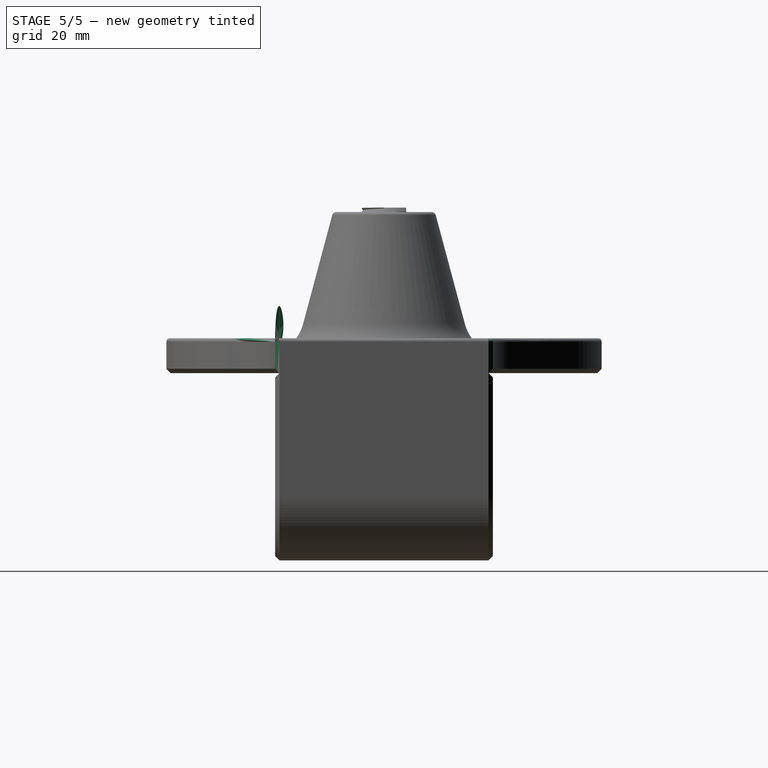
[diagram: stage 5 of 5 — right view after this stage's code; geometry added in this stage tinted green]
FEATURE [PartDesign::Hole] Hole
  BaseFeature = -> Pad
  CustomThreadClearance = 0
  Depth = 25
  DepthType = 0
  Diameter = 5.5
  DrillForDepth = false
  DrillPoint = 1
  DrillPointAngle = 118
  HoleCutCountersinkAngle = 90
  HoleCutCustomValues = false
  HoleCutDepth = 5
  HoleCutDiameter = 9
  HoleCutType = 1
  ModelThread = false
  Placement = pos=(0,0,0) rot=(1,0,0;1.5708rad)
  Profile = -> Sketch002
  Tapered = false
  TaperedAngle = 90
  ThreadClass = 0
  ThreadDepth = 25
  ThreadDepthType = 0
  ThreadDirection = 0
  ThreadFit = 0
  ThreadSize = 13
  ThreadType = 1
  Threaded = false
  UseCustomThreadClearance = false
FEATURE [PartDesign::Chamfer] Chamfer
  Angle = 45
  Base = -> Hole [Edge17,Edge12,Edge11,Edge18]
  BaseFeature = -> Hole
  ChamferType = 0
  FlipDirection = false
  Placement = pos=(0,0,0) rot=(1,0,0;1.5708rad)
  Size = 0.6
  Size2 = 1
  SupportTransform = false
  UseAllEdges = false
FEATURE [PartDesign::Chamfer] Chamfer003
  Angle = 45
  Base = -> Chamfer [Edge15,Edge13,Edge3,Edge2,Edge4]
  BaseFeature = -> Chamfer
  ChamferType = 0
  FlipDirection = false
  Placement = pos=(0,0,0) rot=(1,0,0;1.5708rad)
  Size = 1
  Size2 = 1
  SupportTransform = false
  UseAllEdges = false
FEATURE [PartDesign::Fillet] Fillet
  Base = -> Chamfer003 [Edge10,Edge27,Edge28,Edge30,Edge25]
  BaseFeature = -> Chamfer003
  Placement = pos=(0,0,0) rot=(1,0,0;1.5708rad)
  Radius = 0.8
  SupportTransform = false
  UseAllEdges = false
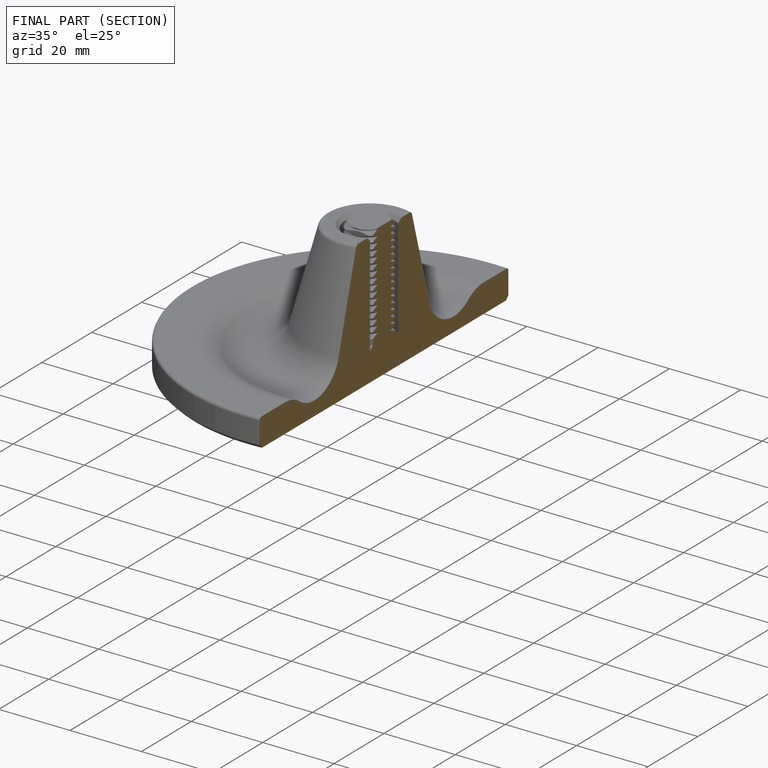
[diagram: finished part — half-section view (interior)]
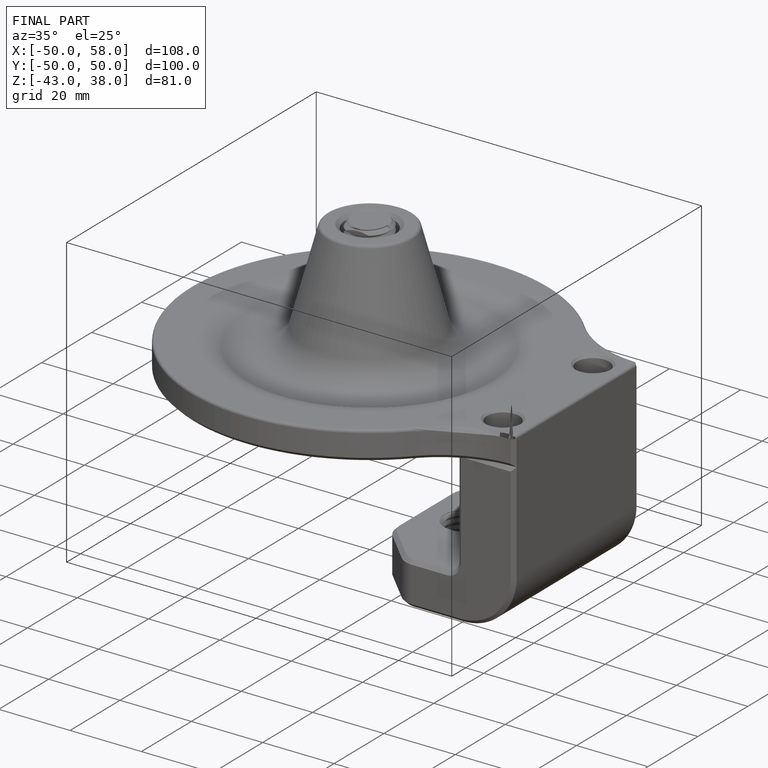
[diagram: finished part — iso view with bounding-box wireframe]
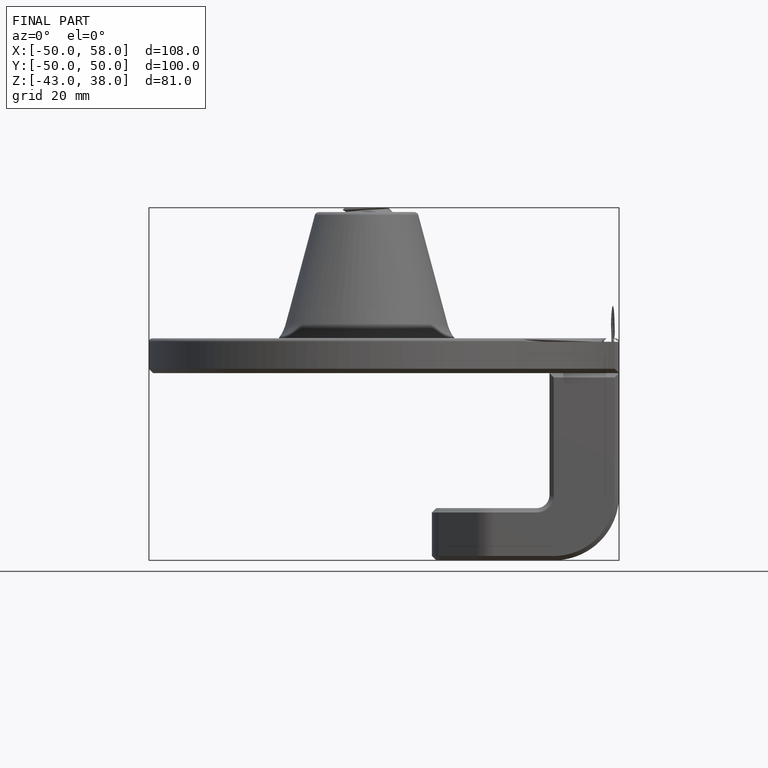
[diagram: finished part — front view with bounding-box wireframe]
